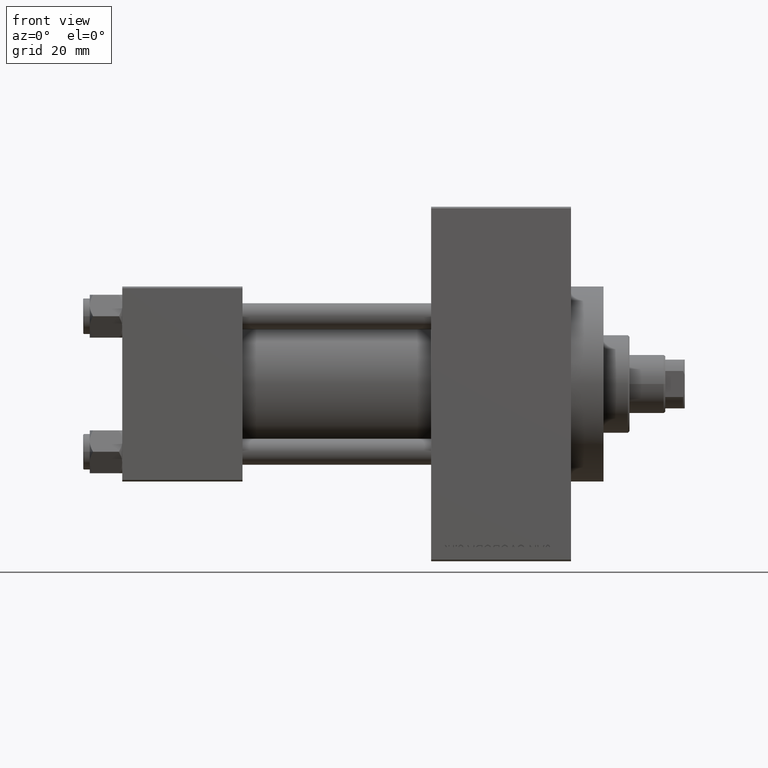
[diagram: clean part render]
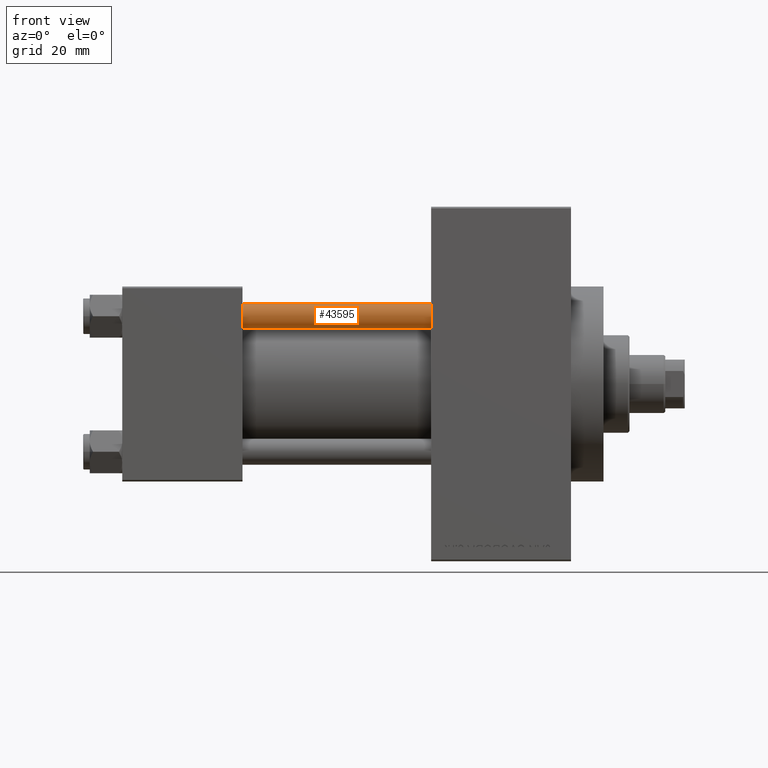
[diagram: same view with one face highlighted and labeled with its STEP entity id]
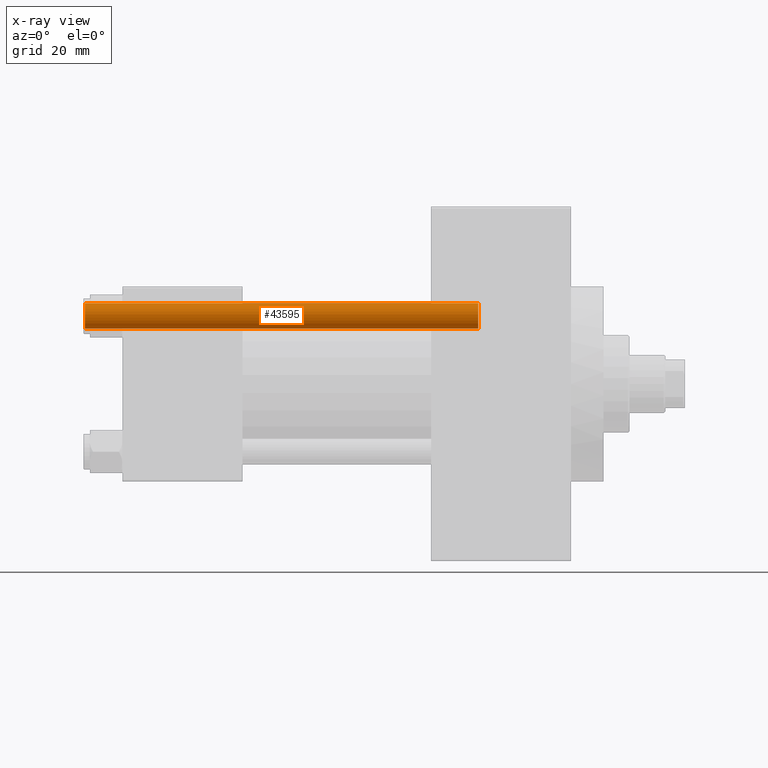
[diagram: x-ray of the same camera — body ghosted, the highlighted face saturated]
A machine part, front view. The second image highlights one B-rep face of the part: STEP entity #43595.
The next image is the same camera in x-ray: the body ghosted, the highlighted face saturated — about 0% of this face is hidden behind the body in this view.
In plain terms, the highlighted cylindrical surface (edge-blend (fillet) strip) has radius 4 mm, axis along (1, 0, 0).
Its self-contained STEP definition (entity closure, byte-faithful):
#5038 = CARTESIAN_POINT ( 'NONE',  ( -4.000000000000000000, 0.000000000000000000, 121.5000000000000426 ) ) ;
#6329 = CARTESIAN_POINT ( 'NONE',  ( -4.000000000000000000, 0.000000000000000000, 0.5000000000000559552 ) ) ;
#10427 = CARTESIAN_POINT ( 'NONE',  ( 0.000000000000000000, 0.000000000000000000, 122.0000000000000000 ) ) ;
#12751 = AXIS2_PLACEMENT_3D ( 'NONE', #10427, #13197, #24647 ) ;
#13197 = DIRECTION ( 'NONE',  ( -0.000000000000000000, -0.000000000000000000, -1.000000000000000000 ) ) ;
#14402 = CIRCLE ( 'NONE', #28731, 4.000000000000000000 ) ;
#14991 = ORIENTED_EDGE ( 'NONE', *, *, #34823, .T. ) ;
#15266 = VECTOR ( 'NONE', #43983, 1000.000000000000000 ) ;
#15980 = VERTEX_POINT ( 'NONE', #20434 ) ;
#16832 = CARTESIAN_POINT ( 'NONE',  ( -4.000000000000000000, 0.000000000000000000, 122.0000000000000000 ) ) ;
#17468 = EDGE_CURVE ( 'NONE', #43356, #33764, #20579, .T. ) ;
#17674 = FACE_OUTER_BOUND ( 'NONE', #25745, .T. ) ;
#18243 = DIRECTION ( 'NONE',  ( 1.000000000000000000, 0.000000000000000000, 0.000000000000000000 ) ) ;
#20163 = CIRCLE ( 'NONE', #34419, 4.000000000000000000 ) ;
#20434 = CARTESIAN_POINT ( 'NONE',  ( 4.000000000000000000, 4.898587196589411843E-16, 121.5000000000000426 ) ) ;
#20579 = LINE ( 'NONE', #16832, #42681 ) ;
#23968 = ORIENTED_EDGE ( 'NONE', *, *, #17468, .F. ) ;
#24541 = DIRECTION ( 'NONE',  ( -0.000000000000000000, -0.000000000000000000, -1.000000000000000000 ) ) ;
#24647 = DIRECTION ( 'NONE',  ( -1.000000000000000000, 0.000000000000000000, 0.000000000000000000 ) ) ;
#25745 = EDGE_LOOP ( 'NONE', ( #28323, #42910, #14991, #23968 ) ) ;
#26655 = CARTESIAN_POINT ( 'NONE',  ( 4.000000000000000000, 4.898587196589411843E-16, 0.5000000000000559552 ) ) ;
#26663 = CARTESIAN_POINT ( 'NONE',  ( 0.000000000000000000, 0.000000000000000000, 0.5000000000000559552 ) ) ;
#28250 = CARTESIAN_POINT ( 'NONE',  ( 0.000000000000000000, 0.000000000000000000, 121.5000000000000426 ) ) ;
#28323 = ORIENTED_EDGE ( 'NONE', *, *, #29653, .T. ) ;
#28731 = AXIS2_PLACEMENT_3D ( 'NONE', #28250, #38947, #43440 ) ;
#29653 = EDGE_CURVE ( 'NONE', #43356, #15980, #14402, .T. ) ;
#33079 = CYLINDRICAL_SURFACE ( 'NONE', #12751, 4.000000000000000000 ) ;
#33764 = VERTEX_POINT ( 'NONE', #6329 ) ;
#34165 = VERTEX_POINT ( 'NONE', #26655 ) ;
#34419 = AXIS2_PLACEMENT_3D ( 'NONE', #26663, #37389, #18243 ) ;
#34823 = EDGE_CURVE ( 'NONE', #34165, #33764, #20163, .T. ) ;
#37389 = DIRECTION ( 'NONE',  ( -0.000000000000000000, -0.000000000000000000, 1.000000000000000000 ) ) ;
#38947 = DIRECTION ( 'NONE',  ( 0.000000000000000000, 0.000000000000000000, -1.000000000000000000 ) ) ;
#39254 = LINE ( 'NONE', #46983, #15266 ) ;
#42681 = VECTOR ( 'NONE', #24541, 1000.000000000000000 ) ;
#42910 = ORIENTED_EDGE ( 'NONE', *, *, #47301, .T. ) ;
#43356 = VERTEX_POINT ( 'NONE', #5038 ) ;
#43440 = DIRECTION ( 'NONE',  ( 1.000000000000000000, 0.000000000000000000, 0.000000000000000000 ) ) ;
#43595 = ADVANCED_FACE ( 'NONE', ( #17674 ), #33079, .T. ) ;
#43983 = DIRECTION ( 'NONE',  ( -0.000000000000000000, -0.000000000000000000, -1.000000000000000000 ) ) ;
#46983 = CARTESIAN_POINT ( 'NONE',  ( 4.000000000000000000, 4.898587196589411843E-16, 122.0000000000000000 ) ) ;
#47301 = EDGE_CURVE ( 'NONE', #15980, #34165, #39254, .T. ) ;